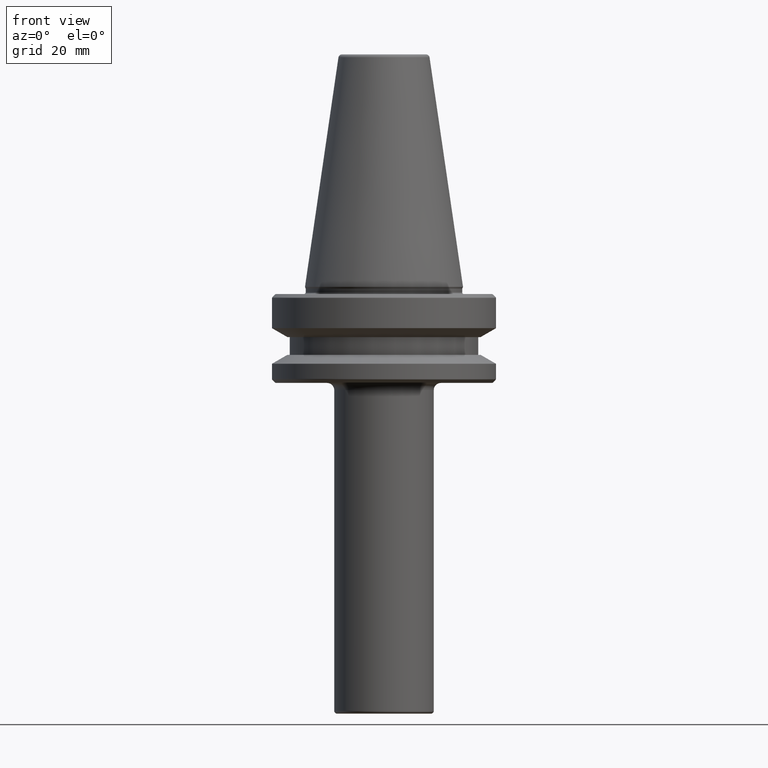
[diagram: clean part render]
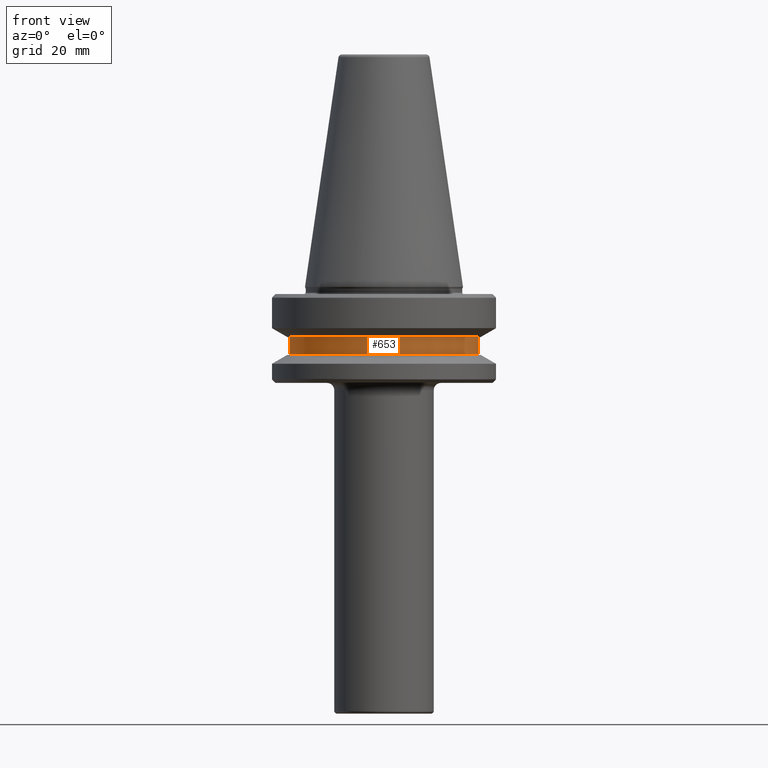
[diagram: same view with one face highlighted and labeled with its STEP entity id]
A machine part, front view. The second image highlights one B-rep face of the part: STEP entity #653.
In plain terms, the highlighted cylindrical surface (partial cylindrical patch) has radius 26.5 mm, axis along (-0, -0, -1).
Its self-contained STEP definition (entity closure, byte-faithful):
#21 = CIRCLE ( 'NONE', #719, 26.50000000000000700 ) ;
#52 = ORIENTED_EDGE ( 'NONE', *, *, #877, .F. ) ;
#75 = AXIS2_PLACEMENT_3D ( 'NONE', #396, #1120, #488 ) ;
#157 = CARTESIAN_POINT ( 'NONE',  ( 26.50000000000000700, 3.245314017740486900E-015, 0.0000000000000000000 ) ) ;
#178 = AXIS2_PLACEMENT_3D ( 'NONE', #935, #431, #1153 ) ;
#191 = EDGE_CURVE ( 'NONE', #850, #1096, #21, .T. ) ;
#196 = ORIENTED_EDGE ( 'NONE', *, *, #1157, .T. ) ;
#211 = DIRECTION ( 'NONE',  ( -0.0000000000000000000, -0.0000000000000000000, -1.000000000000000000 ) ) ;
#320 = DIRECTION ( 'NONE',  ( -0.0000000000000000000, -0.0000000000000000000, -1.000000000000000000 ) ) ;
#340 = LINE ( 'NONE', #157, #558 ) ;
#396 = CARTESIAN_POINT ( 'NONE',  ( 0.0000000000000000000, 0.0000000000000000000, -14.10000000000000000 ) ) ;
#431 = DIRECTION ( 'NONE',  ( -0.0000000000000000000, -0.0000000000000000000, -1.000000000000000000 ) ) ;
#454 = CARTESIAN_POINT ( 'NONE',  ( 26.50000000000000700, 3.245314017740486900E-015, -14.10000000000000000 ) ) ;
#467 = EDGE_CURVE ( 'NONE', #1186, #1096, #572, .T. ) ;
#474 = CARTESIAN_POINT ( 'NONE',  ( -26.50000000000000700, 0.0000000000000000000, -19.09999999999999800 ) ) ;
#488 = DIRECTION ( 'NONE',  ( -1.000000000000000000, 0.0000000000000000000, 0.0000000000000000000 ) ) ;
#497 = CIRCLE ( 'NONE', #75, 26.50000000000000700 ) ;
#511 = CARTESIAN_POINT ( 'NONE',  ( -26.50000000000000700, 0.0000000000000000000, 0.0000000000000000000 ) ) ;
#551 = CARTESIAN_POINT ( 'NONE',  ( 26.50000000000000700, 3.245314017740486900E-015, -19.09999999999999800 ) ) ;
#558 = VECTOR ( 'NONE', #676, 1000.000000000000000 ) ;
#572 = LINE ( 'NONE', #511, #732 ) ;
#622 = EDGE_LOOP ( 'NONE', ( #52, #196, #1176, #1066 ) ) ;
#653 = ADVANCED_FACE ( 'NONE', ( #659 ), #661, .T. ) ;
#659 = FACE_OUTER_BOUND ( 'NONE', #622, .T. ) ;
#661 = CYLINDRICAL_SURFACE ( 'NONE', #178, 26.50000000000000700 ) ;
#676 = DIRECTION ( 'NONE',  ( -0.0000000000000000000, -0.0000000000000000000, -1.000000000000000000 ) ) ;
#719 = AXIS2_PLACEMENT_3D ( 'NONE', #761, #211, #861 ) ;
#732 = VECTOR ( 'NONE', #320, 1000.000000000000000 ) ;
#761 = CARTESIAN_POINT ( 'NONE',  ( 0.0000000000000000000, 0.0000000000000000000, -19.09999999999999800 ) ) ;
#850 = VERTEX_POINT ( 'NONE', #551 ) ;
#855 = VERTEX_POINT ( 'NONE', #454 ) ;
#861 = DIRECTION ( 'NONE',  ( -1.000000000000000000, 0.0000000000000000000, 0.0000000000000000000 ) ) ;
#877 = EDGE_CURVE ( 'NONE', #855, #850, #340, .T. ) ;
#903 = CARTESIAN_POINT ( 'NONE',  ( -26.50000000000000700, 0.0000000000000000000, -14.10000000000000000 ) ) ;
#935 = CARTESIAN_POINT ( 'NONE',  ( 0.0000000000000000000, 0.0000000000000000000, 0.0000000000000000000 ) ) ;
#1066 = ORIENTED_EDGE ( 'NONE', *, *, #191, .F. ) ;
#1096 = VERTEX_POINT ( 'NONE', #474 ) ;
#1120 = DIRECTION ( 'NONE',  ( -0.0000000000000000000, -0.0000000000000000000, -1.000000000000000000 ) ) ;
#1153 = DIRECTION ( 'NONE',  ( -1.000000000000000000, 0.0000000000000000000, 0.0000000000000000000 ) ) ;
#1157 = EDGE_CURVE ( 'NONE', #855, #1186, #497, .T. ) ;
#1176 = ORIENTED_EDGE ( 'NONE', *, *, #467, .T. ) ;
#1186 = VERTEX_POINT ( 'NONE', #903 ) ;